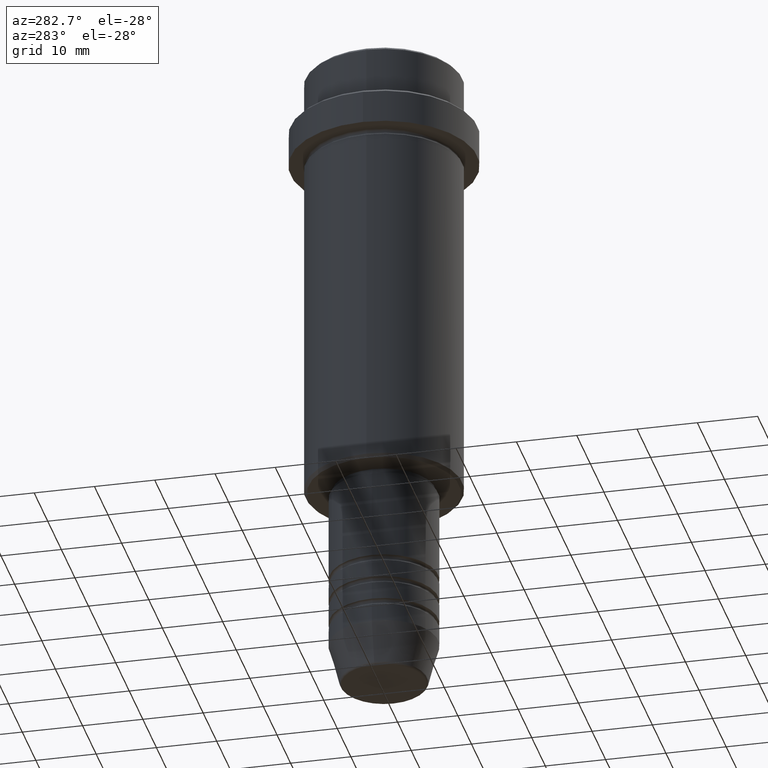
[diagram: clean part render]
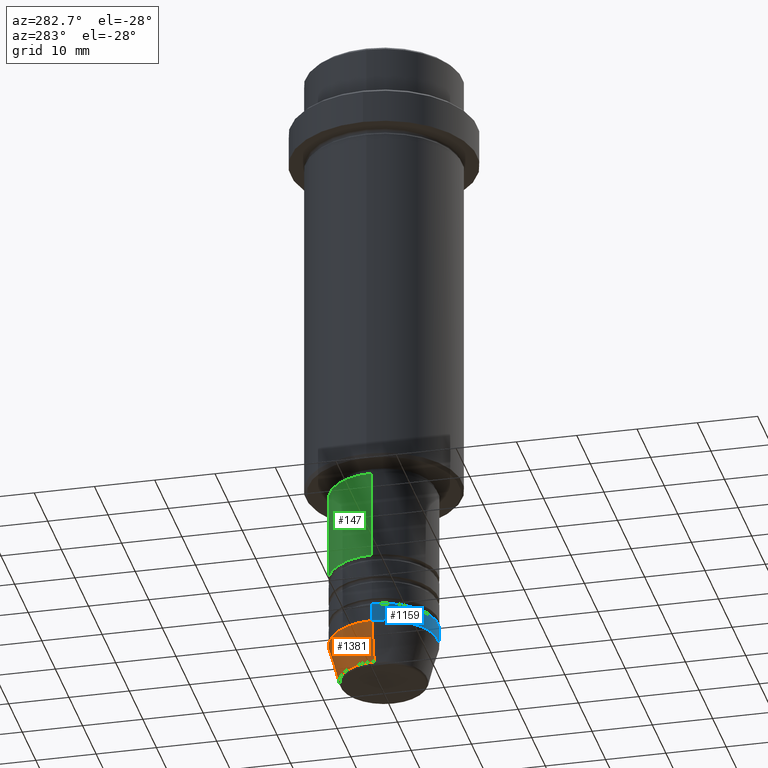
[diagram: same view with three faces highlighted in distinct colors, each labeled with its STEP entity id]
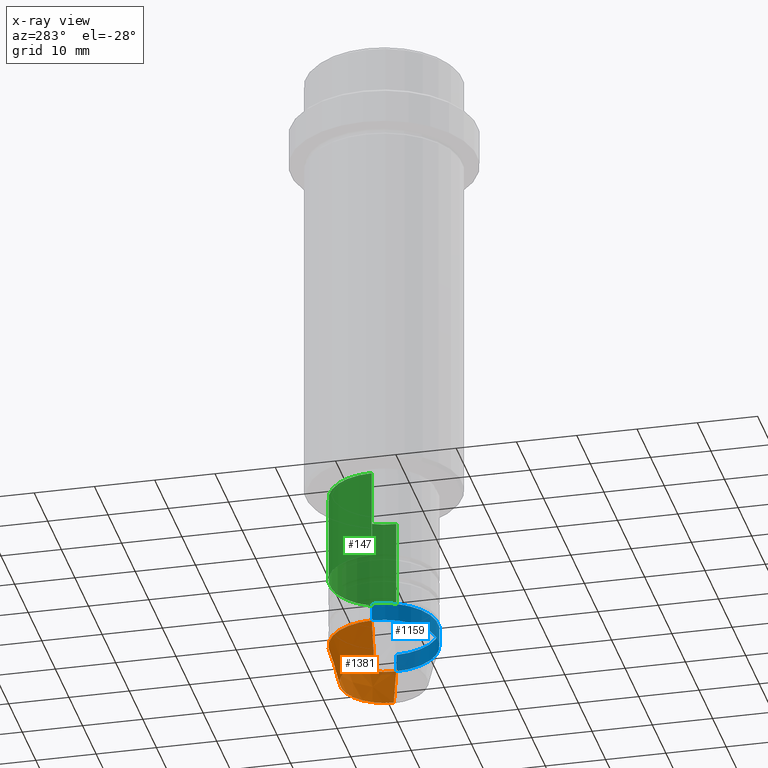
[diagram: x-ray of the same camera — body ghosted, the three highlighted faces saturated]
A machine part, auxiliary view with three faces highlighted in distinct colors.
The next image is the same camera in x-ray (body ghosted, the three faces saturated) — at least one of them is partly hidden behind the body in this view.
Their STEP definitions:

[orange] entity #1381 — the highlighted conical surface has half-angle 15 deg.
#17 = AXIS2_PLACEMENT_3D ( 'NONE', #113, #1411, #1211 ) ;
#53 = ORIENTED_EDGE ( 'NONE', *, *, #430, .T. ) ;
#100 = EDGE_LOOP ( 'NONE', ( #1034, #53, #1080, #371 ) ) ;
#113 = CARTESIAN_POINT ( 'NONE',  ( 0.000000000000000000, 0.000000000000000000, -103.0000000000000142 ) ) ;
#143 = VERTEX_POINT ( 'NONE', #317 ) ;
#169 = CARTESIAN_POINT ( 'NONE',  ( -9.000000000000000000, 1.102182119232617714E-15, -103.0000000000000142 ) ) ;
#174 = DIRECTION ( 'NONE',  ( 1.000000000000000000, 0.000000000000000000, 0.000000000000000000 ) ) ;
#185 = VERTEX_POINT ( 'NONE', #655 ) ;
#188 = CARTESIAN_POINT ( 'NONE',  ( 9.000000000000000000, 0.000000000000000000, -103.0000000000000142 ) ) ;
#226 = CONICAL_SURFACE ( 'NONE', #17, 9.000000000000000000, 0.2617993877991500740 ) ;
#240 = DIRECTION ( 'NONE',  ( 0.2588190451025213501, 0.000000000000000000, 0.9659258262890680902 ) ) ;
#286 = CARTESIAN_POINT ( 'NONE',  ( 0.000000000000000000, 0.000000000000000000, -103.0000000000000142 ) ) ;
#306 = EDGE_CURVE ( 'NONE', #696, #833, #570, .T. ) ;
#317 = CARTESIAN_POINT ( 'NONE',  ( -7.223655072137189492, 9.934123627281765110E-16, -109.6294095225512706 ) ) ;
#371 = ORIENTED_EDGE ( 'NONE', *, *, #306, .F. ) ;
#401 = EDGE_CURVE ( 'NONE', #833, #185, #1139, .T. ) ;
#413 = DIRECTION ( 'NONE',  ( 1.000000000000000000, 0.000000000000000000, 0.000000000000000000 ) ) ;
#430 = EDGE_CURVE ( 'NONE', #143, #185, #625, .T. ) ;
#454 = FACE_OUTER_BOUND ( 'NONE', #100, .T. ) ;
#460 = CARTESIAN_POINT ( 'NONE',  ( 9.000000000000000000, 0.000000000000000000, -103.0000000000000142 ) ) ;
#462 = EDGE_CURVE ( 'NONE', #696, #143, #1203, .T. ) ;
#570 = LINE ( 'NONE', #460, #748 ) ;
#603 = DIRECTION ( 'NONE',  ( -0.2588190451025213501, 3.169619151431772337E-17, 0.9659258262890680902 ) ) ;
#625 = LINE ( 'NONE', #169, #1317 ) ;
#655 = CARTESIAN_POINT ( 'NONE',  ( -9.000000000000000000, 1.102182119232617714E-15, -103.0000000000000142 ) ) ;
#696 = VERTEX_POINT ( 'NONE', #1014 ) ;
#701 = AXIS2_PLACEMENT_3D ( 'NONE', #737, #1389, #413 ) ;
#737 = CARTESIAN_POINT ( 'NONE',  ( 0.000000000000000000, 0.000000000000000000, -109.6294095225512706 ) ) ;
#748 = VECTOR ( 'NONE', #240, 1000.000000000000000 ) ;
#833 = VERTEX_POINT ( 'NONE', #188 ) ;
#1014 = CARTESIAN_POINT ( 'NONE',  ( 7.223655072137188604, 0.000000000000000000, -109.6294095225512706 ) ) ;
#1034 = ORIENTED_EDGE ( 'NONE', *, *, #462, .T. ) ;
#1080 = ORIENTED_EDGE ( 'NONE', *, *, #401, .F. ) ;
#1139 = CIRCLE ( 'NONE', #1183, 9.000000000000000000 ) ;
#1183 = AXIS2_PLACEMENT_3D ( 'NONE', #286, #1369, #174 ) ;
#1203 = CIRCLE ( 'NONE', #701, 7.223655072137188604 ) ;
#1211 = DIRECTION ( 'NONE',  ( 1.000000000000000000, 0.000000000000000000, 0.000000000000000000 ) ) ;
#1317 = VECTOR ( 'NONE', #603, 1000.000000000000000 ) ;
#1369 = DIRECTION ( 'NONE',  ( -0.000000000000000000, -0.000000000000000000, 1.000000000000000000 ) ) ;
#1381 = ADVANCED_FACE ( 'NONE', ( #454 ), #226, .T. ) ;
#1389 = DIRECTION ( 'NONE',  ( -0.000000000000000000, -0.000000000000000000, 1.000000000000000000 ) ) ;
#1411 = DIRECTION ( 'NONE',  ( -0.000000000000000000, -0.000000000000000000, 1.000000000000000000 ) ) ;

[blue] entity #1159 — the highlighted cylindrical surface (partial cylindrical patch) has radius 9 mm, axis along (-0, -0, 1).
#61 = FACE_OUTER_BOUND ( 'NONE', #76, .T. ) ;
#76 = EDGE_LOOP ( 'NONE', ( #643, #607, #788, #840 ) ) ;
#134 = AXIS2_PLACEMENT_3D ( 'NONE', #691, #1037, #1136 ) ;
#168 = EDGE_CURVE ( 'NONE', #185, #833, #886, .T. ) ;
#181 = AXIS2_PLACEMENT_3D ( 'NONE', #450, #535, #967 ) ;
#185 = VERTEX_POINT ( 'NONE', #655 ) ;
#188 = CARTESIAN_POINT ( 'NONE',  ( 9.000000000000000000, 0.000000000000000000, -103.0000000000000142 ) ) ;
#266 = CYLINDRICAL_SURFACE ( 'NONE', #134, 9.000000000000000000 ) ;
#301 = CARTESIAN_POINT ( 'NONE',  ( 9.000000000000000000, 0.000000000000000000, -100.0000000000000000 ) ) ;
#307 = LINE ( 'NONE', #637, #1143 ) ;
#393 = EDGE_CURVE ( 'NONE', #185, #1209, #946, .T. ) ;
#433 = AXIS2_PLACEMENT_3D ( 'NONE', #777, #1210, #541 ) ;
#450 = CARTESIAN_POINT ( 'NONE',  ( 0.000000000000000000, 0.000000000000000000, -100.0000000000000000 ) ) ;
#535 = DIRECTION ( 'NONE',  ( -0.000000000000000000, -0.000000000000000000, 1.000000000000000000 ) ) ;
#541 = DIRECTION ( 'NONE',  ( 1.000000000000000000, 0.000000000000000000, 0.000000000000000000 ) ) ;
#601 = CARTESIAN_POINT ( 'NONE',  ( -9.000000000000000000, 1.102182119232617714E-15, -100.0000000000000000 ) ) ;
#607 = ORIENTED_EDGE ( 'NONE', *, *, #168, .T. ) ;
#637 = CARTESIAN_POINT ( 'NONE',  ( 9.000000000000000000, 0.000000000000000000, 0.000000000000000000 ) ) ;
#642 = EDGE_CURVE ( 'NONE', #1209, #809, #771, .T. ) ;
#643 = ORIENTED_EDGE ( 'NONE', *, *, #393, .F. ) ;
#655 = CARTESIAN_POINT ( 'NONE',  ( -9.000000000000000000, 1.102182119232617714E-15, -103.0000000000000142 ) ) ;
#691 = CARTESIAN_POINT ( 'NONE',  ( 0.000000000000000000, 0.000000000000000000, 0.000000000000000000 ) ) ;
#771 = CIRCLE ( 'NONE', #181, 9.000000000000000000 ) ;
#777 = CARTESIAN_POINT ( 'NONE',  ( 0.000000000000000000, 0.000000000000000000, -103.0000000000000142 ) ) ;
#788 = ORIENTED_EDGE ( 'NONE', *, *, #1032, .T. ) ;
#809 = VERTEX_POINT ( 'NONE', #301 ) ;
#833 = VERTEX_POINT ( 'NONE', #188 ) ;
#840 = ORIENTED_EDGE ( 'NONE', *, *, #642, .F. ) ;
#886 = CIRCLE ( 'NONE', #433, 9.000000000000000000 ) ;
#946 = LINE ( 'NONE', #1151, #1364 ) ;
#967 = DIRECTION ( 'NONE',  ( 1.000000000000000000, 0.000000000000000000, 0.000000000000000000 ) ) ;
#1032 = EDGE_CURVE ( 'NONE', #833, #809, #307, .T. ) ;
#1037 = DIRECTION ( 'NONE',  ( -0.000000000000000000, -0.000000000000000000, 1.000000000000000000 ) ) ;
#1115 = DIRECTION ( 'NONE',  ( -0.000000000000000000, -0.000000000000000000, 1.000000000000000000 ) ) ;
#1136 = DIRECTION ( 'NONE',  ( 1.000000000000000000, 0.000000000000000000, 0.000000000000000000 ) ) ;
#1143 = VECTOR ( 'NONE', #1115, 1000.000000000000000 ) ;
#1151 = CARTESIAN_POINT ( 'NONE',  ( -9.000000000000000000, 1.102182119232617714E-15, 0.000000000000000000 ) ) ;
#1159 = ADVANCED_FACE ( 'NONE', ( #61 ), #266, .T. ) ;
#1209 = VERTEX_POINT ( 'NONE', #601 ) ;
#1210 = DIRECTION ( 'NONE',  ( -0.000000000000000000, -0.000000000000000000, 1.000000000000000000 ) ) ;
#1265 = DIRECTION ( 'NONE',  ( -0.000000000000000000, -0.000000000000000000, 1.000000000000000000 ) ) ;
#1364 = VECTOR ( 'NONE', #1265, 1000.000000000000000 ) ;

[green] entity #147 — the highlighted cylindrical surface (partial cylindrical patch) has radius 9 mm, axis along (-0, -0, 1).
#6 = CARTESIAN_POINT ( 'NONE',  ( 0.000000000000000000, 0.000000000000000000, 0.000000000000000000 ) ) ;
#66 = AXIS2_PLACEMENT_3D ( 'NONE', #192, #787, #1078 ) ;
#142 = CARTESIAN_POINT ( 'NONE',  ( 9.000000000000001776, 0.000000000000000000, -76.00000000000001421 ) ) ;
#147 = ADVANCED_FACE ( 'NONE', ( #1104 ), #1316, .T. ) ;
#182 = CIRCLE ( 'NONE', #66, 9.000000000000001776 ) ;
#183 = CARTESIAN_POINT ( 'NONE',  ( -9.000000000000000000, 1.102182119232617714E-15, -90.99999999999988631 ) ) ;
#192 = CARTESIAN_POINT ( 'NONE',  ( 0.000000000000000000, 0.000000000000000000, -76.00000000000001421 ) ) ;
#204 = VERTEX_POINT ( 'NONE', #1227 ) ;
#268 = VECTOR ( 'NONE', #736, 1000.000000000000000 ) ;
#276 = CARTESIAN_POINT ( 'NONE',  ( 0.000000000000000000, 0.000000000000000000, -90.99999999999988631 ) ) ;
#398 = CARTESIAN_POINT ( 'NONE',  ( 9.000000000000000000, 0.000000000000000000, -90.99999999999988631 ) ) ;
#412 = VECTOR ( 'NONE', #1052, 1000.000000000000000 ) ;
#434 = VERTEX_POINT ( 'NONE', #183 ) ;
#482 = EDGE_LOOP ( 'NONE', ( #1035, #1018, #956, #758 ) ) ;
#523 = LINE ( 'NONE', #949, #412 ) ;
#572 = AXIS2_PLACEMENT_3D ( 'NONE', #276, #587, #1261 ) ;
#587 = DIRECTION ( 'NONE',  ( -0.000000000000000000, -0.000000000000000000, 1.000000000000000000 ) ) ;
#608 = LINE ( 'NONE', #1156, #268 ) ;
#679 = AXIS2_PLACEMENT_3D ( 'NONE', #6, #1297, #1094 ) ;
#736 = DIRECTION ( 'NONE',  ( -0.000000000000000000, -0.000000000000000000, 1.000000000000000000 ) ) ;
#758 = ORIENTED_EDGE ( 'NONE', *, *, #858, .F. ) ;
#787 = DIRECTION ( 'NONE',  ( -0.000000000000000000, -0.000000000000000000, 1.000000000000000000 ) ) ;
#858 = EDGE_CURVE ( 'NONE', #1263, #945, #608, .T. ) ;
#933 = CIRCLE ( 'NONE', #572, 9.000000000000000000 ) ;
#944 = EDGE_CURVE ( 'NONE', #945, #204, #182, .T. ) ;
#945 = VERTEX_POINT ( 'NONE', #142 ) ;
#949 = CARTESIAN_POINT ( 'NONE',  ( -9.000000000000001776, 1.102182119232617911E-15, 0.000000000000000000 ) ) ;
#956 = ORIENTED_EDGE ( 'NONE', *, *, #944, .F. ) ;
#1018 = ORIENTED_EDGE ( 'NONE', *, *, #1303, .T. ) ;
#1035 = ORIENTED_EDGE ( 'NONE', *, *, #1150, .T. ) ;
#1052 = DIRECTION ( 'NONE',  ( -0.000000000000000000, -0.000000000000000000, 1.000000000000000000 ) ) ;
#1078 = DIRECTION ( 'NONE',  ( 1.000000000000000000, 0.000000000000000000, 0.000000000000000000 ) ) ;
#1094 = DIRECTION ( 'NONE',  ( 1.000000000000000000, 0.000000000000000000, 0.000000000000000000 ) ) ;
#1104 = FACE_OUTER_BOUND ( 'NONE', #482, .T. ) ;
#1150 = EDGE_CURVE ( 'NONE', #1263, #434, #933, .T. ) ;
#1156 = CARTESIAN_POINT ( 'NONE',  ( 9.000000000000001776, 0.000000000000000000, 0.000000000000000000 ) ) ;
#1227 = CARTESIAN_POINT ( 'NONE',  ( -9.000000000000001776, 1.102182119232617911E-15, -76.00000000000001421 ) ) ;
#1261 = DIRECTION ( 'NONE',  ( 1.000000000000000000, 0.000000000000000000, 0.000000000000000000 ) ) ;
#1263 = VERTEX_POINT ( 'NONE', #398 ) ;
#1297 = DIRECTION ( 'NONE',  ( -0.000000000000000000, -0.000000000000000000, 1.000000000000000000 ) ) ;
#1303 = EDGE_CURVE ( 'NONE', #434, #204, #523, .T. ) ;
#1316 = CYLINDRICAL_SURFACE ( 'NONE', #679, 9.000000000000001776 ) ;